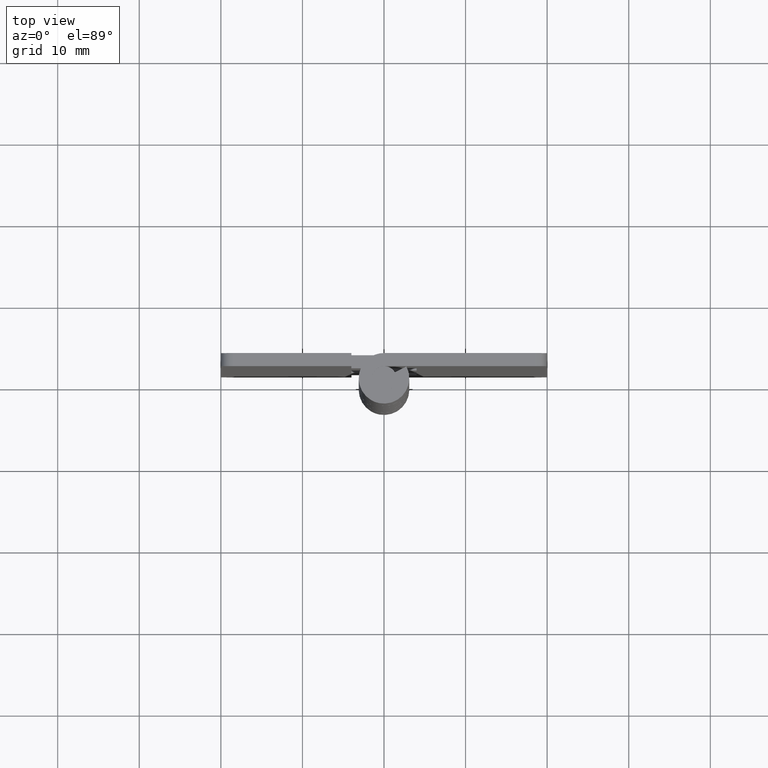
[diagram: clean part render]
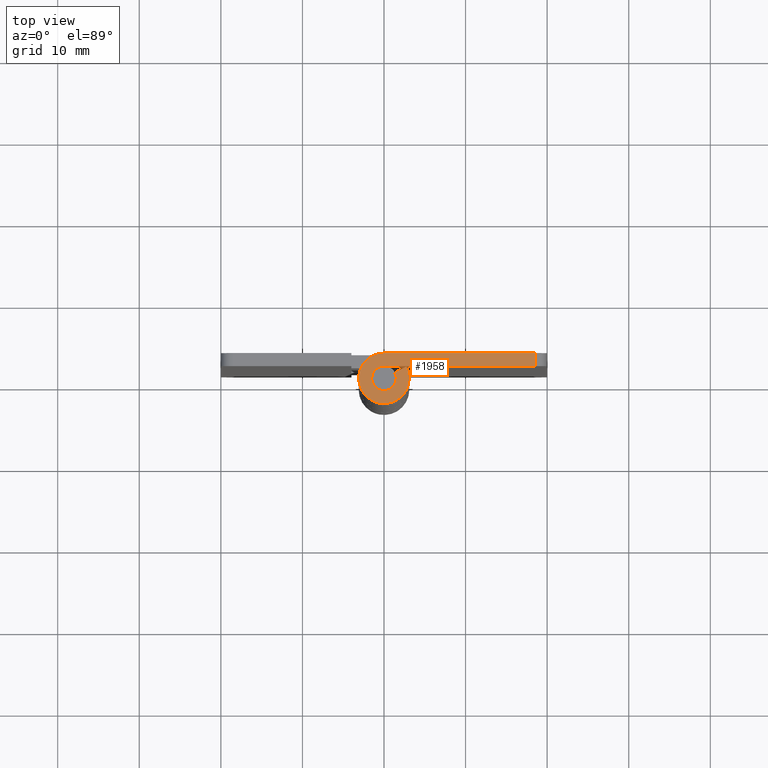
[diagram: same view with one face highlighted and labeled with its STEP entity id]
A machine part, top view. The second image highlights one B-rep face of the part: STEP entity #1958.
In plain terms, the highlighted face is a freeform B-spline surface patch.
Its self-contained STEP definition (entity closure, byte-faithful):
#943=CARTESIAN_POINT('',(1.325797621821316,0.701612903225806,79.999992999999890));
#944=VERTEX_POINT('',#943);
#987=CARTESIAN_POINT('',(-2.755364E-016,1.500000000000000,79.999992999999890));
#988=VERTEX_POINT('',#987);
#994=CARTESIAN_POINT('',(-0.773815405252075,-1.284994053914090,79.999992999999890));
#995=VERTEX_POINT('',#994);
#996=CARTESIAN_POINT('',(-0.773815405252075,-1.284994053914090,79.999992999999890));
#997=CARTESIAN_POINT('',(-0.913049670799024,-1.201250950952042,79.999992999999932));
#998=CARTESIAN_POINT('',(-1.124617827988905,-1.021227922924580,79.999992999999648));
#999=CARTESIAN_POINT('',(-1.329893345819826,-0.715973477397156,79.999993000000103));
#1000=CARTESIAN_POINT('',(-1.457556737656214,-0.404612049883444,79.999992999999691));
#1001=CARTESIAN_POINT('',(-1.509890824045955,-0.091424226472371,79.999992999999847));
#1002=CARTESIAN_POINT('',(-1.486441377562628,0.315825876483602,79.999992999999932));
#1003=CARTESIAN_POINT('',(-1.351863023400759,0.706224837998994,79.999992999999634));
#1004=CARTESIAN_POINT('',(-1.067836453225632,1.082264101046224,79.999993000000117));
#1005=CARTESIAN_POINT('',(-0.746432852390921,1.321438321131357,79.999992999999264));
#1006=CARTESIAN_POINT('',(-0.375690095171350,1.467610262096597,79.999993000000529));
#1007=CARTESIAN_POINT('',(-0.132012490797939,1.500040237200359,79.999993000001126));
#1008=CARTESIAN_POINT('',(-2.755364E-016,1.500000000000000,79.999992999999890));
#1009=B_SPLINE_CURVE_WITH_KNOTS('',3,(#996,#997,#998,#999,#1000,#1001,#1002,#1003,#1004,#1005,#1006,#1007,#1008),.UNSPECIFIED.,.F.,.U.,(4,1,1,1,1,1,1,1,1,1,4),(0.000000369999562,0.487410391692154,0.822529153017090,1.096716770404550,1.492746528279552,1.766938834327572,2.315270907738396,2.711302704018871,3.168283670535715,3.503378184634090,3.899409482669193),.UNSPECIFIED.);
#1010=EDGE_CURVE('',#995,#988,#1009,.T.);
#1012=CARTESIAN_POINT('',(1.325797621821316,0.701612903225806,79.999992999999890));
#1013=CARTESIAN_POINT('',(1.392350769440554,0.575983089647658,79.999992999999932));
#1014=CARTESIAN_POINT('',(1.468474196595928,0.363560302662149,79.999992999999847));
#1015=CARTESIAN_POINT('',(1.507866076705073,0.039930622719207,79.999992999999918));
#1016=CARTESIAN_POINT('',(1.485993038462082,-0.316678261064985,79.999992999999890));
#1017=CARTESIAN_POINT('',(1.353537830523813,-0.696155251646700,79.999992999999833));
#1018=CARTESIAN_POINT('',(1.076141144489704,-1.076339473075423,79.999992999999478));
#1019=CARTESIAN_POINT('',(0.705880620180005,-1.355637436285075,79.999993000000927));
#1020=CARTESIAN_POINT('',(0.284622702749202,-1.490920632885341,79.999992999998909));
#1021=CARTESIAN_POINT('',(-0.092649004086436,-1.508570268264832,79.999992999999648));
#1022=CARTESIAN_POINT('',(-0.435267258073714,-1.451065590149008,79.999993000001410));
#1023=CARTESIAN_POINT('',(-0.660745883894345,-1.353130997602097,79.999992999997801));
#1024=CARTESIAN_POINT('',(-0.773815405252075,-1.284994053914090,79.999992999999890));
#1025=B_SPLINE_CURVE_WITH_KNOTS('',3,(#1012,#1013,#1014,#1015,#1016,#1017,#1018,#1019,#1020,#1021,#1022,#1023,#1024),.UNSPECIFIED.,.F.,.U.,(4,1,1,1,1,1,1,1,1,1,4),(0.000000370000003,0.426487340643195,0.670211235888871,0.974854852059540,1.492746504499235,1.858327302483974,2.376177902094256,2.863628744860231,3.168283620064764,3.503378128824381,3.899409420552113),.UNSPECIFIED.);
#1026=EDGE_CURVE('',#944,#995,#1025,.T.);
#1036=CARTESIAN_POINT('',(2.739981751764055,1.450000000000000,79.999992999999890));
#1037=VERTEX_POINT('',#1036);
#1051=CARTESIAN_POINT('',(2.739981751764055,1.450000000000000,79.999992999999890));
#1052=CARTESIAN_POINT('',(1.325797621821316,0.701612903225806,79.999992999999890));
#1053=QUASI_UNIFORM_CURVE('',1,(#1051,#1052),.UNSPECIFIED.,.F.,.U.);
#1054=EDGE_CURVE('',#1037,#944,#1053,.T.);
#1149=CARTESIAN_POINT('',(0.003521362805218,3.099998000000000,79.999992999999890));
#1150=VERTEX_POINT('',#1149);
#1156=CARTESIAN_POINT('',(18.500000000000000,3.099998000000000,79.999992999999890));
#1157=VERTEX_POINT('',#1156);
#1158=CARTESIAN_POINT('',(18.500000000000000,3.099998000000000,79.999992999999890));
#1159=CARTESIAN_POINT('',(0.003521362805218,3.099998000000000,79.999992999999890));
#1160=QUASI_UNIFORM_CURVE('',1,(#1158,#1159),.UNSPECIFIED.,.F.,.U.);
#1161=EDGE_CURVE('',#1157,#1150,#1160,.T.);
#1375=CARTESIAN_POINT('',(-1.600727473712045,-2.654745101681789,79.999992999999904));
#1376=VERTEX_POINT('',#1375);
#1377=CARTESIAN_POINT('',(2.739981751764055,1.450000000000000,79.999992999999890));
#1378=CARTESIAN_POINT('',(2.857846372558427,1.227391004892518,79.999992999999918));
#1379=CARTESIAN_POINT('',(3.053991376616037,0.713737116296231,79.999992999999861));
#1380=CARTESIAN_POINT('',(3.132998802800156,-0.066794889571112,79.999992999999790));
#1381=CARTESIAN_POINT('',(3.026537567060812,-0.755675970558994,79.999992999999947));
#1382=CARTESIAN_POINT('',(2.840752164733449,-1.270767250150239,79.999993000000018));
#1383=CARTESIAN_POINT('',(2.579187452042019,-1.751327167824768,79.999992999999577));
#1384=CARTESIAN_POINT('',(2.153596417266874,-2.276418572082712,79.999993000000501));
#1385=CARTESIAN_POINT('',(1.573457894859294,-2.704345336910508,79.999992999999748));
#1386=CARTESIAN_POINT('',(0.952666356664997,-2.968173165322313,79.999992999999932));
#1387=CARTESIAN_POINT('',(0.355996942792092,-3.101105301917860,79.999992999999833));
#1388=CARTESIAN_POINT('',(-0.256474980858788,-3.110921619676428,79.999992999999947));
#1389=CARTESIAN_POINT('',(-0.939927418616708,-2.981494386310545,79.999992999999861));
#1390=CARTESIAN_POINT('',(-1.367093871093986,-2.795731428089612,79.999992999999890));
#1391=CARTESIAN_POINT('',(-1.600727473712045,-2.654745101681789,79.999992999999904));
#1392=B_SPLINE_CURVE_WITH_KNOTS('',3,(#1377,#1378,#1379,#1380,#1381,#1382,#1383,#1384,#1385,#1386,#1387,#1388,#1389,#1390,#1391),.UNSPECIFIED.,.F.,.U.,(4,1,1,1,1,1,1,1,1,1,1,1,4),(0.000000054536336,0.755668364947042,1.637287098719344,2.330011315218865,2.833797969669258,3.274630769137110,3.967298249422679,4.848883444814748,5.415655553316283,5.982430796862951,6.675156411199341,7.241928519721180,8.060541312538149),.UNSPECIFIED.);
#1393=EDGE_CURVE('',#1037,#1376,#1392,.T.);
#1395=CARTESIAN_POINT('',(-1.600727473712045,-2.654745101681789,79.999992999999904));
#1396=CARTESIAN_POINT('',(-1.816455104142891,-2.524717521418351,79.999992999999961));
#1397=CARTESIAN_POINT('',(-2.249297127817008,-2.185647453034068,79.999992999999932));
#1398=CARTESIAN_POINT('',(-2.693840862803631,-1.591428343030828,79.999992999999748));
#1399=CARTESIAN_POINT('',(-2.970147370076330,-0.953034680132708,79.999992999999947));
#1400=CARTESIAN_POINT('',(-3.114681331501785,-0.293507097220295,79.999993000000273));
#1401=CARTESIAN_POINT('',(-3.100377568208918,0.510999272929088,79.999992999999606));
#1402=CARTESIAN_POINT('',(-2.866355132885820,1.261004369181314,79.999993000000615));
#1403=CARTESIAN_POINT('',(-2.439405917553739,1.963560159031463,79.999992999999066));
#1404=CARTESIAN_POINT('',(-1.941736404455829,2.456869044384134,79.999992999998838));
#1405=CARTESIAN_POINT('',(-1.343982478600065,2.812697444396126,79.999993000002533));
#1406=CARTESIAN_POINT('',(-0.731157115440661,3.039437268413156,79.999992999993694));
#1407=CARTESIAN_POINT('',(-0.269356760321241,3.100405648624195,79.999993000007180));
#1408=CARTESIAN_POINT('',(0.003521362805218,3.099998000000000,79.999992999999890));
#1409=B_SPLINE_CURVE_WITH_KNOTS('',3,(#1395,#1396,#1397,#1398,#1399,#1400,#1401,#1402,#1403,#1404,#1405,#1406,#1407,#1408),.UNSPECIFIED.,.F.,.U.,(4,1,1,1,1,1,1,1,1,1,1,4),(0.000000054533924,0.755668176142312,1.637286689704359,2.204059155215005,2.833797261723453,3.652447002615305,4.596986922940078,5.163778307789944,6.108379641693805,6.675154743638816,7.241926710557042,8.060539298898449),.UNSPECIFIED.);
#1410=EDGE_CURVE('',#1376,#1150,#1409,.T.);
#1545=CARTESIAN_POINT('',(18.500000000000000,1.500000000000000,79.999992999999890));
#1546=VERTEX_POINT('',#1545);
#1565=CARTESIAN_POINT('',(18.500000000000000,1.500000000000000,79.999992999999890));
#1566=CARTESIAN_POINT('',(18.500000000000000,3.099998000000000,79.999992999999890));
#1567=QUASI_UNIFORM_CURVE('',1,(#1565,#1566),.UNSPECIFIED.,.F.,.U.);
#1568=EDGE_CURVE('',#1546,#1157,#1567,.T.);
#1939=CARTESIAN_POINT('',(-4.178677262526042,-3.408844658816101,79.999992999999890));
#1940=CARTESIAN_POINT('',(19.578908991560091,-3.408844658816101,79.999992999999890));
#1941=CARTESIAN_POINT('',(-4.178677262526042,3.409647843681881,79.999992999999890));
#1942=CARTESIAN_POINT('',(19.578908991560091,3.409647843681881,79.999992999999890));
#1943=B_SPLINE_SURFACE_WITH_KNOTS('',1,1,((#1939,#1941),(#1940,#1942)),.UNSPECIFIED.,.F.,.F.,.U.,(2,2),(2,2),(0.0,23.757586254086132),(0.0,6.818492502497983),.UNSPECIFIED.);
#1944=CARTESIAN_POINT('',(-2.755364E-016,1.500000000000000,79.999992999999890));
#1945=CARTESIAN_POINT('',(18.500000000000000,1.500000000000000,79.999992999999890));
#1946=QUASI_UNIFORM_CURVE('',1,(#1944,#1945),.UNSPECIFIED.,.F.,.U.);
#1947=EDGE_CURVE('',#988,#1546,#1946,.T.);
#1948=ORIENTED_EDGE('',*,*,#1947,.T.);
#1949=ORIENTED_EDGE('',*,*,#1568,.T.);
#1950=ORIENTED_EDGE('',*,*,#1161,.T.);
#1951=ORIENTED_EDGE('',*,*,#1410,.F.);
#1952=ORIENTED_EDGE('',*,*,#1393,.F.);
#1953=ORIENTED_EDGE('',*,*,#1054,.T.);
#1954=ORIENTED_EDGE('',*,*,#1026,.T.);
#1955=ORIENTED_EDGE('',*,*,#1010,.T.);
#1956=EDGE_LOOP('',(#1948,#1949,#1950,#1951,#1952,#1953,#1954,#1955));
#1957=FACE_OUTER_BOUND('',#1956,.T.);
#1958=ADVANCED_FACE('',(#1957),#1943,.T.);